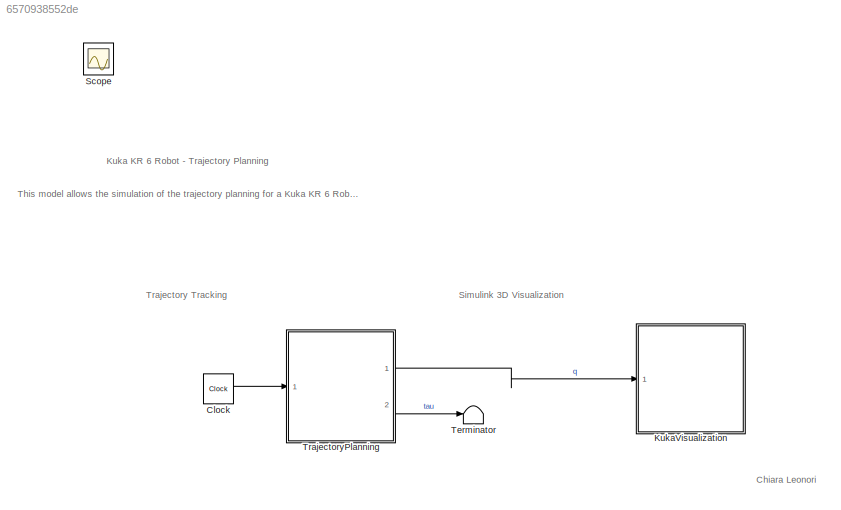
MODEL slx_6570938552de
KIND model
CONFIG AbsTol = auto
CONFIG EnableMultiTasking = off
CONFIG FixedStep = 0.01
CONFIG InitFcn = printlog('Start simulation...');\n\nif TP_MODE == 1\n    printlog('Run simulation...');\n    return;\nend\n\nprintlog('Solve Inverse Kinematics in JointSpace...');\njointWaypoints = zeros(6, size(waypointsStruct.waypoints, 2));\nfor i=1:size(waypointsStruct.waypoints, 2)\n    if isempty(waypointsStruct.orientations)\n        R = eye(3, 3);\n    else\n        R = trajectory.convertEulerToRotationMatrix(waypoint...<+272ch>
CONFIG MaxStep = auto
CONFIG MinStep = auto
CONFIG PreLoadFcn = TP_TASK_SPACE = Simulink.Variant('TP_MODE==1');\nTP_JOINT_SPACE = Simulink.Variant('TP_MODE==2');\n
CONFIG RelTol = 1e-3
CONFIG SampleTimeConstraint = Unconstrained
CONFIG SolverName = VariableStepAuto
CONFIG StartTime = 0.0
CONFIG StopFcn = t = datetime('now');\nprintlog('Stop simulation.');
CONFIG StopTime = 30
BLOCK [Clock] Clock
BLOCK [SubSystem] KukaVisualization
  Ports = [1]
  ReferencedSubsystem = KukaVisualizationModel
  RequestExecContextInheritance = off
BLOCK [Scope] Scope
  Floating = off
  IOType = viewer
  NumInputPorts = 1
  Ports = []
  ScopeSpecificationString = Simulink.scopes.TimeScopeBlockCfg('CurrentConfiguration', extmgr.ConfigurationSet(extmgr.Configuration('Core','General UI',true),extmgr.Configuration('Core','Source UI',true),extmgr.Configuration('Sources','WiredSimulink',true),extmgr.Configuration('Visuals','Time Domain',true,'SerializedDisplays',{struct('MinYLimReal','-857488542.12863','MaxYLimReal','540173956.81203','YLabelReal','','MinYLimMag'...<+1454ch>
BLOCK [Terminator] Terminator
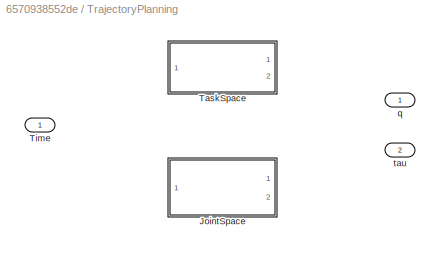
BLOCK [SubSystem] TrajectoryPlanning
  Ports = [1, 2]
  RequestExecContextInheritance = off
  Variant = on
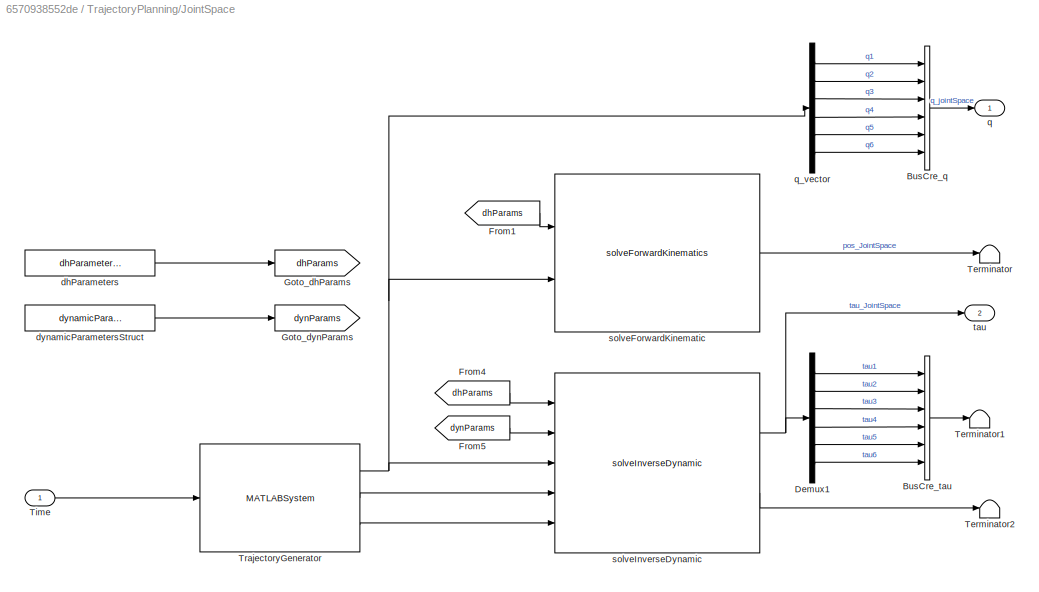
BLOCK [SubSystem] TrajectoryPlanning/JointSpace
  Ports = [1, 2]
  RequestExecContextInheritance = off
  VariantControl = TP_MODE == 2
BLOCK [BusCreator] TrajectoryPlanning/JointSpace/BusCre_q
  DisplayOption = bar
  InheritFromInputs = on
  Inputs = q1,q2,q3,q4,q5,q6
  OutDataTypeStr = Bus: Bus_q
  Ports = [6, 1]
BLOCK [BusCreator] TrajectoryPlanning/JointSpace/BusCre_tau
  DisplayOption = bar
  InheritFromInputs = on
  Inputs = tau1,tau2,tau3,tau4,tau5,tau6
  OutDataTypeStr = Bus: Bus_tau
  Ports = [6, 1]
BLOCK [Demux] TrajectoryPlanning/JointSpace/Demux1
  Outputs = 6
  Ports = [1, 6]
BLOCK [From] TrajectoryPlanning/JointSpace/From1
  GotoTag = dhParams
BLOCK [From] TrajectoryPlanning/JointSpace/From4
  GotoTag = dhParams
BLOCK [From] TrajectoryPlanning/JointSpace/From5
  GotoTag = dynParams
BLOCK [Goto] TrajectoryPlanning/JointSpace/Goto_dhParams
  GotoTag = dhParams
BLOCK [Goto] TrajectoryPlanning/JointSpace/Goto_dynParams
  GotoTag = dynParams
BLOCK [Terminator] TrajectoryPlanning/JointSpace/Terminator
BLOCK [Terminator] TrajectoryPlanning/JointSpace/Terminator1
BLOCK [Terminator] TrajectoryPlanning/JointSpace/Terminator2
BLOCK [Inport] TrajectoryPlanning/JointSpace/Time
BLOCK [MATLABSystem] TrajectoryPlanning/JointSpace/TrajectoryGenerator
  Accelerations = zeros(6, size(waypointsStruct.waypoints, 2))
  MaskDisplay = image('srcs\simulink\blockicons\polynomial-icon-big.jpg');\nport_label('input',1,'t');\nport_label('output',1,'q_out');\nport_label('output',2,'qd_out');\nport_label('output',3,'qdd_out');
  MaskType = core.TrajectoryGenerator
  Method = Cubic Polynomial
  Orientations = zeros( 3, 5 )
  Ports = [1, 3]
  PropertyLogical = off
  SimulateUsing = Interpreted execution
  SolverSpace = JointSpace
  System = core.TrajectoryGenerator
  Timepoints = waypointsStruct.times
  Velocities = zeros(6, size(waypointsStruct.waypoints, 2))
  Waypoints = jointWaypoints
BLOCK [Constant] TrajectoryPlanning/JointSpace/dhParameters
  OutDataTypeStr = Bus: Bus_dhParameter
  Value = dhParametersStruct
BLOCK [Constant] TrajectoryPlanning/JointSpace/dynamicParametersStruct
  OutDataTypeStr = Bus: Bus_dynamicsParameter
  Value = dynamicParametersStruct
BLOCK [Outport] TrajectoryPlanning/JointSpace/q
  OutDataTypeStr = Bus: Bus_q
BLOCK [Demux] TrajectoryPlanning/JointSpace/q_vector
  Outputs = 6
  Ports = [1, 6]
BLOCK [Reference] TrajectoryPlanning/JointSpace/solveForwardKinematic  REF=lib_Solver/solveForwardKinematics
  Ports = [2, 1]
  SourceBlock = lib_Solver/solveForwardKinematics
BLOCK [Reference] TrajectoryPlanning/JointSpace/solveInverseDynamic  REF=lib_Solver/solveInverseDynamic
  Ports = [5, 2]
  SourceBlock = lib_Solver/solveInverseDynamic
BLOCK [Outport] TrajectoryPlanning/JointSpace/tau
  OutDataTypeStr = double
  Port = 2
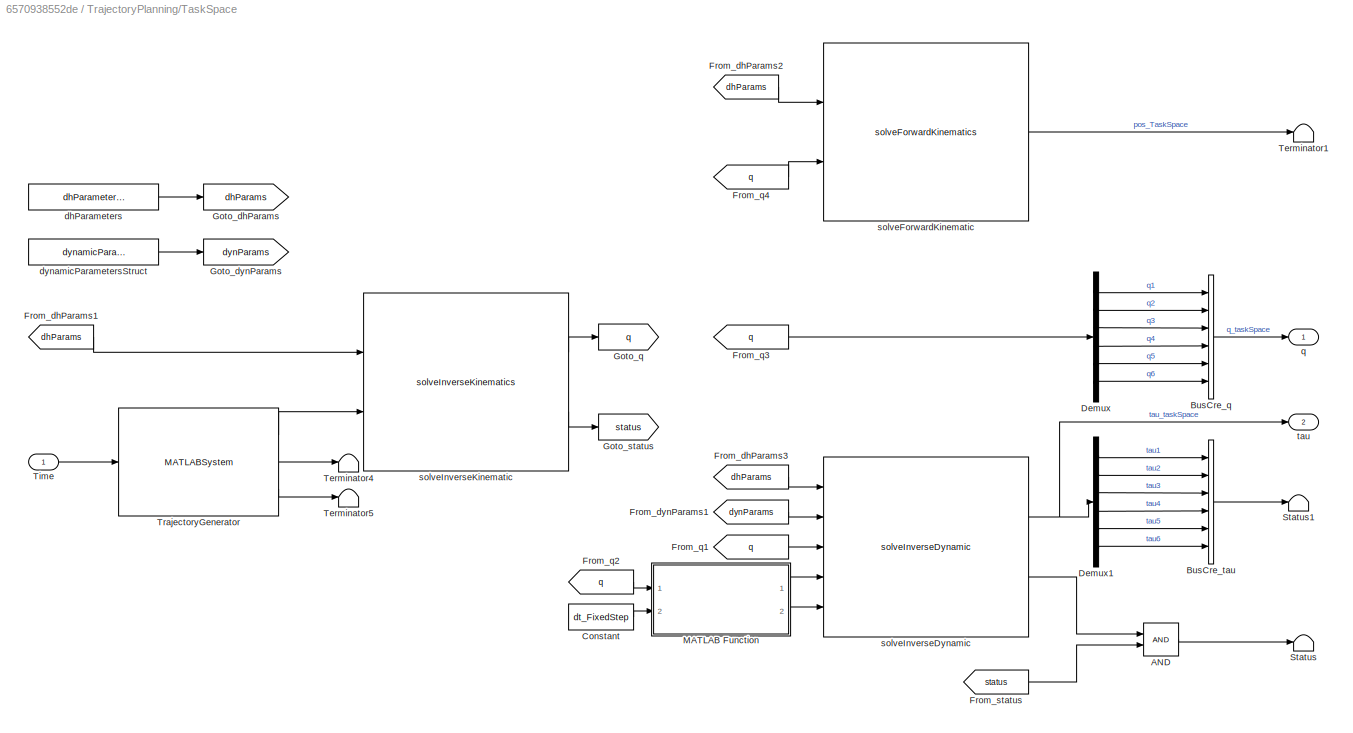
BLOCK [SubSystem] TrajectoryPlanning/TaskSpace
  Ports = [1, 2]
  RequestExecContextInheritance = off
  VariantControl = TP_MODE == 1
BLOCK [Logic] TrajectoryPlanning/TaskSpace/AND
  AllPortsSameDT = off
  OutDataTypeStr = boolean
  Ports = [2, 1]
BLOCK [BusCreator] TrajectoryPlanning/TaskSpace/BusCre_q
  DisplayOption = bar
  InheritFromInputs = on
  Inputs = q1,q2,q3,q4,q5,q6
  OutDataTypeStr = Bus: Bus_q
  Ports = [6, 1]
BLOCK [BusCreator] TrajectoryPlanning/TaskSpace/BusCre_tau
  DisplayOption = bar
  InheritFromInputs = on
  Inputs = tau1,tau2,tau3,tau4,tau5,tau6
  OutDataTypeStr = Bus: Bus_tau
  Ports = [6, 1]
BLOCK [Constant] TrajectoryPlanning/TaskSpace/Constant
  OutDataTypeStr = double
  Value = dt_FixedStep
BLOCK [Demux] TrajectoryPlanning/TaskSpace/Demux
  Outputs = 6
  Ports = [1, 6]
BLOCK [Demux] TrajectoryPlanning/TaskSpace/Demux1
  Outputs = 6
  Ports = [1, 6]
BLOCK [From] TrajectoryPlanning/TaskSpace/From_dhParams1
  GotoTag = dhParams
BLOCK [From] TrajectoryPlanning/TaskSpace/From_dhParams2
  GotoTag = dhParams
BLOCK [From] TrajectoryPlanning/TaskSpace/From_dhParams3
  GotoTag = dhParams
BLOCK [From] TrajectoryPlanning/TaskSpace/From_dynParams1
  GotoTag = dynParams
BLOCK [From] TrajectoryPlanning/TaskSpace/From_q1
  GotoTag = q
BLOCK [From] TrajectoryPlanning/TaskSpace/From_q2
  GotoTag = q
BLOCK [From] TrajectoryPlanning/TaskSpace/From_q3
  GotoTag = q
BLOCK [From] TrajectoryPlanning/TaskSpace/From_q4
  GotoTag = q
BLOCK [From] TrajectoryPlanning/TaskSpace/From_status
  GotoTag = status
BLOCK [Goto] TrajectoryPlanning/TaskSpace/Goto_dhParams
  GotoTag = dhParams
BLOCK [Goto] TrajectoryPlanning/TaskSpace/Goto_dynParams
  GotoTag = dynParams
BLOCK [Goto] TrajectoryPlanning/TaskSpace/Goto_q
  GotoTag = q
BLOCK [Goto] TrajectoryPlanning/TaskSpace/Goto_status
  GotoTag = status
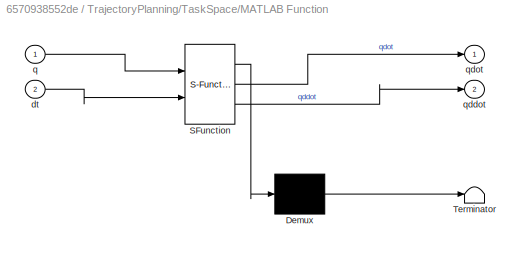
BLOCK [SubSystem] TrajectoryPlanning/TaskSpace/MATLAB Function
  ErrorFcn = Stateflow.Translate.translate
  PermitHierarchicalResolution = ExplicitOnly
  Ports = [2, 2]
  RequestExecContextInheritance = off
  SFBlockType = MATLAB Function
  TreatAsAtomicUnit = on
BLOCK [Demux] TrajectoryPlanning/TaskSpace/MATLAB Function/ Demux 
  Outputs = 1
  Ports = [1, 1]
BLOCK [S-Function] TrajectoryPlanning/TaskSpace/MATLAB Function/ SFunction 
  EnableBusSupport = on
  FunctionName = sf_sfun
  PortCounts = [2 3]
  Ports = [2, 3]
  SFcnIsStateOwnerBlock = off
  SFunctionDeploymentMode = off
  Tag = Stateflow S-Function 2
BLOCK [Terminator] TrajectoryPlanning/TaskSpace/MATLAB Function/ Terminator 
BLOCK [Inport] TrajectoryPlanning/TaskSpace/MATLAB Function/dt
  Port = 2
BLOCK [Inport] TrajectoryPlanning/TaskSpace/MATLAB Function/q
BLOCK [Outport] TrajectoryPlanning/TaskSpace/MATLAB Function/qddot
  Port = 2
BLOCK [Outport] TrajectoryPlanning/TaskSpace/MATLAB Function/qdot
BLOCK [Terminator] TrajectoryPlanning/TaskSpace/Status
BLOCK [Terminator] TrajectoryPlanning/TaskSpace/Status1
BLOCK [Terminator] TrajectoryPlanning/TaskSpace/Terminator1
BLOCK [Terminator] TrajectoryPlanning/TaskSpace/Terminator4
BLOCK [Terminator] TrajectoryPlanning/TaskSpace/Terminator5
BLOCK [Inport] TrajectoryPlanning/TaskSpace/Time
BLOCK [MATLABSystem] TrajectoryPlanning/TaskSpace/TrajectoryGenerator
  Accelerations = waypointsStruct.accelerations
  MaskDisplay = image('srcs\simulink\blockicons\polynomial-icon-big.jpg');\nport_label('input',1,'t');\nport_label('output',1,'q_out');\nport_label('output',2,'qd_out');\nport_label('output',3,'qdd_out');
  MaskType = core.TrajectoryGenerator
  Method = Quintic Polynomial
  Orientations = waypointsStruct.orientations
  Ports = [1, 3]
  PropertyLogical = off
  SimulateUsing = Interpreted execution
  SolverSpace = JointSpace
  System = core.TrajectoryGenerator
  Timepoints = waypointsStruct.times
  Velocities = waypointsStruct.velocities
  Waypoints = waypointsStruct.waypoints
BLOCK [Constant] TrajectoryPlanning/TaskSpace/dhParameters
  OutDataTypeStr = Bus: Bus_dhParameter
  Value = dhParametersStruct
BLOCK [Constant] TrajectoryPlanning/TaskSpace/dynamicParametersStruct
  OutDataTypeStr = Bus: Bus_dynamicsParameter
  Value = dynamicParametersStruct
BLOCK [Outport] TrajectoryPlanning/TaskSpace/q
  OutDataTypeStr = Bus: Bus_q
BLOCK [Reference] TrajectoryPlanning/TaskSpace/solveForwardKinematic  REF=lib_Solver/solveForwardKinematics
  Ports = [2, 1]
  SourceBlock = lib_Solver/solveForwardKinematics
BLOCK [Reference] TrajectoryPlanning/TaskSpace/solveInverseDynamic  REF=lib_Solver/solveInverseDynamic
  Ports = [5, 2]
  SourceBlock = lib_Solver/solveInverseDynamic
BLOCK [Reference] TrajectoryPlanning/TaskSpace/solveInverseKinematic  REF=lib_Solver/solveInverseKinematics
  Ports = [2, 2]
  SourceBlock = lib_Solver/solveInverseKinematics
BLOCK [Outport] TrajectoryPlanning/TaskSpace/tau
  OutDataTypeStr = double
  Port = 2
BLOCK [Inport] TrajectoryPlanning/Time
BLOCK [Outport] TrajectoryPlanning/q
  OutDataTypeStr = Bus: Bus_q
BLOCK [Outport] TrajectoryPlanning/tau
  OutDataTypeStr = double
  Port = 2
ANNOTATION (root): Chiara Leonori
ANNOTATION (root): This model allows the simulation of the trajectory planning for a Kuka KR 6 Robot. Either the task space or the joint space can be used, through two Variant Subsystems ("TP_MODE"=1 -> task space; "TP_MODE"=2 -> joint space).The model uses the polynomial trajectory block to create continuous trajectories in the configuration space.The KukaVisualization Model reference simulates and displays the beh...<+74ch>
ANNOTATION (root): Kuka KR 6 Robot - Trajectory Planning
ANNOTATION (root): Simulink 3D Visualization
ANNOTATION (root): Trajectory Tracking
LINE Clock:1 -> TrajectoryPlanning:1
LINE TrajectoryPlanning/JointSpace/BusCre_q:1 -> TrajectoryPlanning/JointSpace/q:1
LINE TrajectoryPlanning/JointSpace/BusCre_tau:1 -> TrajectoryPlanning/JointSpace/Terminator1:1
LINE TrajectoryPlanning/JointSpace/Demux1:1 -> TrajectoryPlanning/JointSpace/BusCre_tau:1
LINE TrajectoryPlanning/JointSpace/Demux1:2 -> TrajectoryPlanning/JointSpace/BusCre_tau:2
LINE TrajectoryPlanning/JointSpace/Demux1:3 -> TrajectoryPlanning/JointSpace/BusCre_tau:3
LINE TrajectoryPlanning/JointSpace/Demux1:4 -> TrajectoryPlanning/JointSpace/BusCre_tau:4
LINE TrajectoryPlanning/JointSpace/Demux1:5 -> TrajectoryPlanning/JointSpace/BusCre_tau:5
LINE TrajectoryPlanning/JointSpace/Demux1:6 -> TrajectoryPlanning/JointSpace/BusCre_tau:6
LINE TrajectoryPlanning/JointSpace/From1:1 -> TrajectoryPlanning/JointSpace/solveForwardKinematic:1
LINE TrajectoryPlanning/JointSpace/From4:1 -> TrajectoryPlanning/JointSpace/solveInverseDynamic:1
LINE TrajectoryPlanning/JointSpace/From5:1 -> TrajectoryPlanning/JointSpace/solveInverseDynamic:2
LINE TrajectoryPlanning/JointSpace/Time:1 -> TrajectoryPlanning/JointSpace/TrajectoryGenerator:1
NET TrajectoryPlanning/JointSpace/TrajectoryGenerator:1 -> TrajectoryPlanning/JointSpace/q_vector:1, TrajectoryPlanning/JointSpace/solveForwardKinematic:2, TrajectoryPlanning/JointSpace/solveInverseDynamic:3
LINE TrajectoryPlanning/JointSpace/TrajectoryGenerator:2 -> TrajectoryPlanning/JointSpace/solveInverseDynamic:4
LINE TrajectoryPlanning/JointSpace/TrajectoryGenerator:3 -> TrajectoryPlanning/JointSpace/solveInverseDynamic:5
LINE TrajectoryPlanning/JointSpace/dhParameters:1 -> TrajectoryPlanning/JointSpace/Goto_dhParams:1
LINE TrajectoryPlanning/JointSpace/dynamicParametersStruct:1 -> TrajectoryPlanning/JointSpace/Goto_dynParams:1
LINE TrajectoryPlanning/JointSpace/q_vector:1 -> TrajectoryPlanning/JointSpace/BusCre_q:1
LINE TrajectoryPlanning/JointSpace/q_vector:2 -> TrajectoryPlanning/JointSpace/BusCre_q:2
LINE TrajectoryPlanning/JointSpace/q_vector:3 -> TrajectoryPlanning/JointSpace/BusCre_q:3
LINE TrajectoryPlanning/JointSpace/q_vector:4 -> TrajectoryPlanning/JointSpace/BusCre_q:4
LINE TrajectoryPlanning/JointSpace/q_vector:5 -> TrajectoryPlanning/JointSpace/BusCre_q:5
LINE TrajectoryPlanning/JointSpace/q_vector:6 -> TrajectoryPlanning/JointSpace/BusCre_q:6
LINE TrajectoryPlanning/JointSpace/solveForwardKinematic:1 -> TrajectoryPlanning/JointSpace/Terminator:1
NET TrajectoryPlanning/JointSpace/solveInverseDynamic:1 -> TrajectoryPlanning/JointSpace/Demux1:1, TrajectoryPlanning/JointSpace/tau:1
LINE TrajectoryPlanning/JointSpace/solveInverseDynamic:2 -> TrajectoryPlanning/JointSpace/Terminator2:1
LINE TrajectoryPlanning/TaskSpace/AND:1 -> TrajectoryPlanning/TaskSpace/Status:1
LINE TrajectoryPlanning/TaskSpace/BusCre_q:1 -> TrajectoryPlanning/TaskSpace/q:1
LINE TrajectoryPlanning/TaskSpace/BusCre_tau:1 -> TrajectoryPlanning/TaskSpace/Status1:1
LINE TrajectoryPlanning/TaskSpace/Constant:1 -> TrajectoryPlanning/TaskSpace/MATLAB Function:2
LINE TrajectoryPlanning/TaskSpace/Demux1:1 -> TrajectoryPlanning/TaskSpace/BusCre_tau:1
LINE TrajectoryPlanning/TaskSpace/Demux1:2 -> TrajectoryPlanning/TaskSpace/BusCre_tau:2
LINE TrajectoryPlanning/TaskSpace/Demux1:3 -> TrajectoryPlanning/TaskSpace/BusCre_tau:3
LINE TrajectoryPlanning/TaskSpace/Demux1:4 -> TrajectoryPlanning/TaskSpace/BusCre_tau:4
LINE TrajectoryPlanning/TaskSpace/Demux1:5 -> TrajectoryPlanning/TaskSpace/BusCre_tau:5
LINE TrajectoryPlanning/TaskSpace/Demux1:6 -> TrajectoryPlanning/TaskSpace/BusCre_tau:6
LINE TrajectoryPlanning/TaskSpace/Demux:1 -> TrajectoryPlanning/TaskSpace/BusCre_q:1
LINE TrajectoryPlanning/TaskSpace/Demux:2 -> TrajectoryPlanning/TaskSpace/BusCre_q:2
LINE TrajectoryPlanning/TaskSpace/Demux:3 -> TrajectoryPlanning/TaskSpace/BusCre_q:3
LINE TrajectoryPlanning/TaskSpace/Demux:4 -> TrajectoryPlanning/TaskSpace/BusCre_q:4
LINE TrajectoryPlanning/TaskSpace/Demux:5 -> TrajectoryPlanning/TaskSpace/BusCre_q:5
LINE TrajectoryPlanning/TaskSpace/Demux:6 -> TrajectoryPlanning/TaskSpace/BusCre_q:6
LINE TrajectoryPlanning/TaskSpace/From_dhParams1:1 -> TrajectoryPlanning/TaskSpace/solveInverseKinematic:1
LINE TrajectoryPlanning/TaskSpace/From_dhParams2:1 -> TrajectoryPlanning/TaskSpace/solveForwardKinematic:1
LINE TrajectoryPlanning/TaskSpace/From_dhParams3:1 -> TrajectoryPlanning/TaskSpace/solveInverseDynamic:1
LINE TrajectoryPlanning/TaskSpace/From_dynParams1:1 -> TrajectoryPlanning/TaskSpace/solveInverseDynamic:2
LINE TrajectoryPlanning/TaskSpace/From_q1:1 -> TrajectoryPlanning/TaskSpace/solveInverseDynamic:3
LINE TrajectoryPlanning/TaskSpace/From_q2:1 -> TrajectoryPlanning/TaskSpace/MATLAB Function:1
LINE TrajectoryPlanning/TaskSpace/From_q3:1 -> TrajectoryPlanning/TaskSpace/Demux:1
LINE TrajectoryPlanning/TaskSpace/From_q4:1 -> TrajectoryPlanning/TaskSpace/solveForwardKinematic:2
LINE TrajectoryPlanning/TaskSpace/From_status:1 -> TrajectoryPlanning/TaskSpace/AND:2
LINE TrajectoryPlanning/TaskSpace/MATLAB Function:1 -> TrajectoryPlanning/TaskSpace/solveInverseDynamic:4
LINE TrajectoryPlanning/TaskSpace/MATLAB Function:2 -> TrajectoryPlanning/TaskSpace/solveInverseDynamic:5
LINE TrajectoryPlanning/TaskSpace/Time:1 -> TrajectoryPlanning/TaskSpace/TrajectoryGenerator:1
LINE TrajectoryPlanning/TaskSpace/TrajectoryGenerator:1 -> TrajectoryPlanning/TaskSpace/solveInverseKinematic:2
LINE TrajectoryPlanning/TaskSpace/TrajectoryGenerator:2 -> TrajectoryPlanning/TaskSpace/Terminator4:1
LINE TrajectoryPlanning/TaskSpace/TrajectoryGenerator:3 -> TrajectoryPlanning/TaskSpace/Terminator5:1
LINE TrajectoryPlanning/TaskSpace/dhParameters:1 -> TrajectoryPlanning/TaskSpace/Goto_dhParams:1
LINE TrajectoryPlanning/TaskSpace/dynamicParametersStruct:1 -> TrajectoryPlanning/TaskSpace/Goto_dynParams:1
LINE TrajectoryPlanning/TaskSpace/solveForwardKinematic:1 -> TrajectoryPlanning/TaskSpace/Terminator1:1
NET TrajectoryPlanning/TaskSpace/solveInverseDynamic:1 -> TrajectoryPlanning/TaskSpace/Demux1:1, TrajectoryPlanning/TaskSpace/tau:1
LINE TrajectoryPlanning/TaskSpace/solveInverseDynamic:2 -> TrajectoryPlanning/TaskSpace/AND:1
LINE TrajectoryPlanning/TaskSpace/solveInverseKinematic:1 -> TrajectoryPlanning/TaskSpace/Goto_q:1
LINE TrajectoryPlanning/TaskSpace/solveInverseKinematic:2 -> TrajectoryPlanning/TaskSpace/Goto_status:1
LINE TrajectoryPlanning:1 -> KukaVisualization:1
LINE TrajectoryPlanning:2 -> Terminator:1
note: NET lines group one-source signal fan-out (src -> all destinations, sorted); 1:1 wires keep LINE
CHART TrajectoryPlanning/TaskSpace/MATLAB Function states=1 transitions=1
  STATE_LABEL 'eML_blk_kernel()'
  STATE_LABEL 'SCRIPT:\nfunction [qdot, qddot] = calculateGradient(q, dt)\n\nqdot = gradient(q, dt);\nqddot = gradient(qdot, dt);\n'
CHART  states=0 transitions=0
